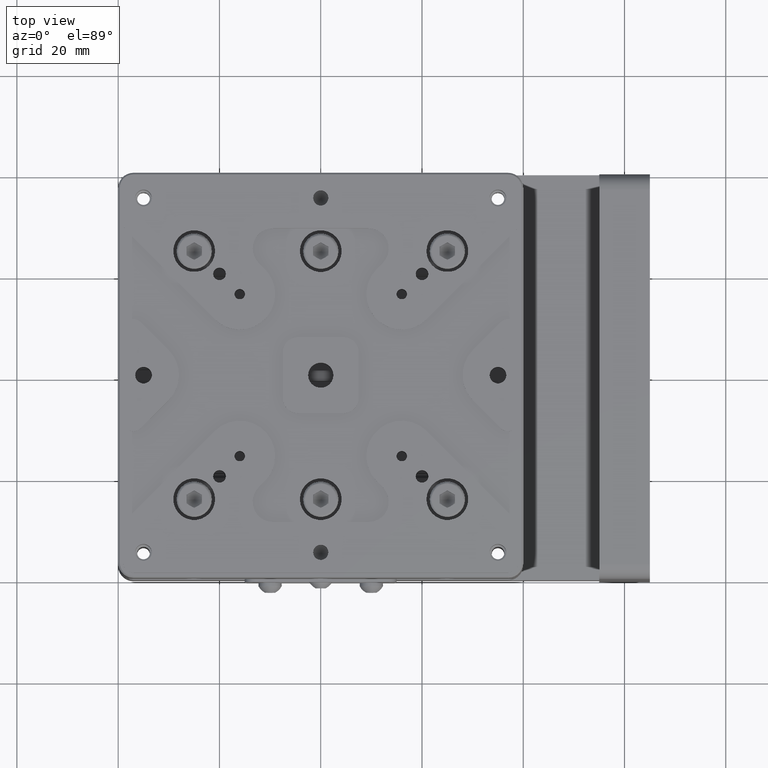
[diagram: clean part render]
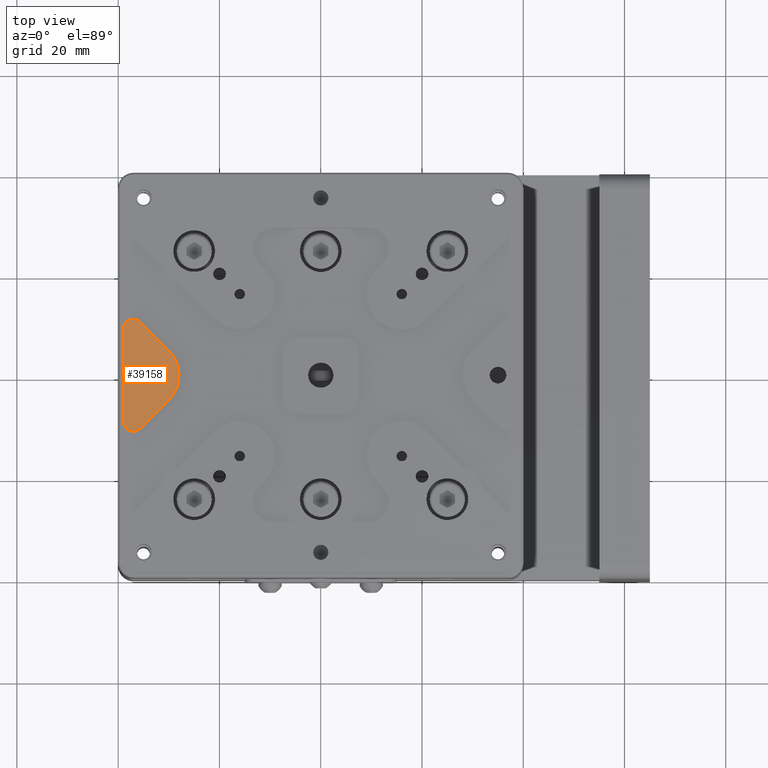
[diagram: same view with one face highlighted and labeled with its STEP entity id]
A machine part, top view. The second image highlights one B-rep face of the part: STEP entity #39158.
In plain terms, the highlighted planar face has unit normal (0, 0, 1).
Its self-contained STEP definition (entity closure, byte-faithful):
#236 = CARTESIAN_POINT ( 'NONE',  ( -33.35000000000000142, 0.000000000000000000, 15.50000000000000000 ) ) ;
#494 = CIRCLE ( 'NONE', #11034, 2.000000000000001776 ) ;
#537 = LINE ( 'NONE', #16838, #2923 ) ;
#593 = CIRCLE ( 'NONE', #31407, 1.649999999999998579 ) ;
#1185 = AXIS2_PLACEMENT_3D ( 'NONE', #20513, #29045, #45891 ) ;
#2515 = VECTOR ( 'NONE', #40361, 1000.000000000000114 ) ;
#2580 = EDGE_CURVE ( 'NONE', #41092, #13899, #537, .T. ) ;
#2923 = VECTOR ( 'NONE', #37781, 1000.000000000000000 ) ;
#4402 = CARTESIAN_POINT ( 'NONE',  ( -39.24264068712000153, 14.14213562373000777, 15.50000000000000000 ) ) ;
#5599 = DIRECTION ( 'NONE',  ( -0.000000000000000000, -0.000000000000000000, -1.000000000000000000 ) ) ;
#6027 = CARTESIAN_POINT ( 'NONE',  ( -30.05025253169546673, 4.949747468305473852, 15.50000000000000000 ) ) ;
#6294 = VECTOR ( 'NONE', #29220, 1000.000000000000114 ) ;
#7909 = VERTEX_POINT ( 'NONE', #6027 ) ;
#9077 = EDGE_CURVE ( 'NONE', #7909, #30040, #12430, .T. ) ;
#9496 = CARTESIAN_POINT ( 'NONE',  ( -37.00000000000000000, 9.071067811864999442, 15.50000000000000000 ) ) ;
#10212 = CIRCLE ( 'NONE', #48088, 6.999999999999999112 ) ;
#10521 = FACE_BOUND ( 'NONE', #42282, .T. ) ;
#11034 = AXIS2_PLACEMENT_3D ( 'NONE', #9496, #14200, #34861 ) ;
#11207 = DIRECTION ( 'NONE',  ( 1.000000000000000000, 0.000000000000000000, 0.000000000000000000 ) ) ;
#11774 = DIRECTION ( 'NONE',  ( -0.000000000000000000, -0.000000000000000000, -1.000000000000000000 ) ) ;
#12430 = LINE ( 'NONE', #4402, #6294 ) ;
#13616 = EDGE_CURVE ( 'NONE', #29681, #23719, #593, .T. ) ;
#13899 = VERTEX_POINT ( 'NONE', #34291 ) ;
#14195 = LINE ( 'NONE', #52260, #2515 ) ;
#14200 = DIRECTION ( 'NONE',  ( 0.000000000000000000, 0.000000000000000000, -1.000000000000000000 ) ) ;
#14408 = DIRECTION ( 'NONE',  ( 0.000000000000000000, 0.000000000000000000, 1.000000000000000000 ) ) ;
#14997 = EDGE_LOOP ( 'NONE', ( #27880, #32183, #36700, #15014, #32185, #28643, #53409 ) ) ;
#15014 = ORIENTED_EDGE ( 'NONE', *, *, #18853, .F. ) ;
#16741 = CARTESIAN_POINT ( 'NONE',  ( -35.58578643762774618, 10.48528137423775597, 15.50000000000000000 ) ) ;
#16838 = CARTESIAN_POINT ( 'NONE',  ( -39.00000000000000000, -39.00000000000000000, 15.50000000000000000 ) ) ;
#17595 = CARTESIAN_POINT ( 'NONE',  ( -36.64999999999999858, 2.020667218593131029E-16, 15.50000000000000000 ) ) ;
#17808 = VERTEX_POINT ( 'NONE', #23765 ) ;
#18787 = FACE_OUTER_BOUND ( 'NONE', #14997, .T. ) ;
#18853 = EDGE_CURVE ( 'NONE', #17808, #13899, #48186, .T. ) ;
#20256 = EDGE_CURVE ( 'NONE', #17808, #47154, #14195, .T. ) ;
#20513 = CARTESIAN_POINT ( 'NONE',  ( -35.00000000000000000, 0.000000000000000000, 15.50000000000000000 ) ) ;
#20912 = CARTESIAN_POINT ( 'NONE',  ( -28.00000000000000355, 0.000000000000000000, 15.50000000000000000 ) ) ;
#22683 = DIRECTION ( 'NONE',  ( -0.000000000000000000, -0.000000000000000000, -1.000000000000000000 ) ) ;
#22946 = DIRECTION ( 'NONE',  ( 1.000000000000000000, 0.000000000000000000, -0.000000000000000000 ) ) ;
#23719 = VERTEX_POINT ( 'NONE', #236 ) ;
#23765 = CARTESIAN_POINT ( 'NONE',  ( -35.58578643762615457, -10.48528137423975259, 15.50000000000000000 ) ) ;
#26889 = CARTESIAN_POINT ( 'NONE',  ( -35.00000000000000000, 0.000000000000000000, 15.50000000000000000 ) ) ;
#26907 = EDGE_CURVE ( 'NONE', #41092, #30040, #494, .T. ) ;
#27880 = ORIENTED_EDGE ( 'NONE', *, *, #9077, .T. ) ;
#27960 = DIRECTION ( 'NONE',  ( -0.000000000000000000, -0.000000000000000000, -1.000000000000000000 ) ) ;
#28643 = ORIENTED_EDGE ( 'NONE', *, *, #51842, .F. ) ;
#29045 = DIRECTION ( 'NONE',  ( -0.000000000000000000, -0.000000000000000000, -1.000000000000000000 ) ) ;
#29220 = DIRECTION ( 'NONE',  ( -0.7071067811865474617, 0.7071067811865474617, -0.000000000000000000 ) ) ;
#29681 = VERTEX_POINT ( 'NONE', #17595 ) ;
#30040 = VERTEX_POINT ( 'NONE', #16741 ) ;
#30760 = ORIENTED_EDGE ( 'NONE', *, *, #41179, .T. ) ;
#31193 = ORIENTED_EDGE ( 'NONE', *, *, #13616, .T. ) ;
#31407 = AXIS2_PLACEMENT_3D ( 'NONE', #26889, #27960, #43725 ) ;
#32183 = ORIENTED_EDGE ( 'NONE', *, *, #26907, .F. ) ;
#32185 = ORIENTED_EDGE ( 'NONE', *, *, #20256, .T. ) ;
#34291 = CARTESIAN_POINT ( 'NONE',  ( -39.00000000000000000, -9.071067811865001218, 15.50000000000000000 ) ) ;
#34861 = DIRECTION ( 'NONE',  ( -1.000000000000000000, 0.000000000000000000, 0.000000000000000000 ) ) ;
#35618 = CARTESIAN_POINT ( 'NONE',  ( -40.00000000000000000, 40.00000000000000000, 15.50000000000000000 ) ) ;
#35650 = CARTESIAN_POINT ( 'NONE',  ( -37.00000000000000000, -9.071067811864999442, 15.50000000000000000 ) ) ;
#36700 = ORIENTED_EDGE ( 'NONE', *, *, #2580, .T. ) ;
#37781 = DIRECTION ( 'NONE',  ( 0.000000000000000000, -1.000000000000000000, -0.000000000000000000 ) ) ;
#39158 = ADVANCED_FACE ( 'NONE', ( #18787, #10521 ), #52205, .T. ) ;
#39522 = DIRECTION ( 'NONE',  ( 1.000000000000000000, 2.602085213965208275E-15, 0.000000000000000000 ) ) ;
#40361 = DIRECTION ( 'NONE',  ( 0.7071067811865474617, 0.7071067811865474617, -0.000000000000000000 ) ) ;
#40961 = VERTEX_POINT ( 'NONE', #20912 ) ;
#41092 = VERTEX_POINT ( 'NONE', #47645 ) ;
#41179 = EDGE_CURVE ( 'NONE', #23719, #29681, #43097, .T. ) ;
#42282 = EDGE_LOOP ( 'NONE', ( #30760, #31193 ) ) ;
#43097 = CIRCLE ( 'NONE', #51936, 1.649999999999998579 ) ;
#43725 = DIRECTION ( 'NONE',  ( 1.000000000000000000, 0.000000000000000000, 0.000000000000000000 ) ) ;
#43771 = CARTESIAN_POINT ( 'NONE',  ( -30.05025253169235100, -4.949747468308347997, 15.50000000000000000 ) ) ;
#44175 = AXIS2_PLACEMENT_3D ( 'NONE', #35618, #14408, #22946 ) ;
#45405 = CARTESIAN_POINT ( 'NONE',  ( -35.00000000000000000, 0.000000000000000000, 15.50000000000000000 ) ) ;
#45891 = DIRECTION ( 'NONE',  ( 1.000000000000000000, -8.881784197001252323E-16, 0.000000000000000000 ) ) ;
#46699 = DIRECTION ( 'NONE',  ( 1.000000000000000000, 0.000000000000000000, 0.000000000000000000 ) ) ;
#47154 = VERTEX_POINT ( 'NONE', #43771 ) ;
#47645 = CARTESIAN_POINT ( 'NONE',  ( -39.00000000000000000, 9.071067811865001218, 15.50000000000000000 ) ) ;
#47793 = CARTESIAN_POINT ( 'NONE',  ( -35.00000000000000000, 0.000000000000000000, 15.50000000000000000 ) ) ;
#48088 = AXIS2_PLACEMENT_3D ( 'NONE', #47793, #5599, #46699 ) ;
#48186 = CIRCLE ( 'NONE', #50845, 2.000000000000001776 ) ;
#50541 = EDGE_CURVE ( 'NONE', #7909, #40961, #53177, .T. ) ;
#50845 = AXIS2_PLACEMENT_3D ( 'NONE', #35650, #22683, #39522 ) ;
#51842 = EDGE_CURVE ( 'NONE', #40961, #47154, #10212, .T. ) ;
#51936 = AXIS2_PLACEMENT_3D ( 'NONE', #45405, #11774, #11207 ) ;
#52205 = PLANE ( 'NONE',  #44175 ) ;
#52260 = CARTESIAN_POINT ( 'NONE',  ( -30.05025253168999910, -4.949747468305999654, 15.50000000000000000 ) ) ;
#53177 = CIRCLE ( 'NONE', #1185, 6.999999999999999112 ) ;
#53409 = ORIENTED_EDGE ( 'NONE', *, *, #50541, .F. ) ;